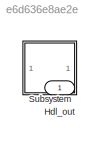
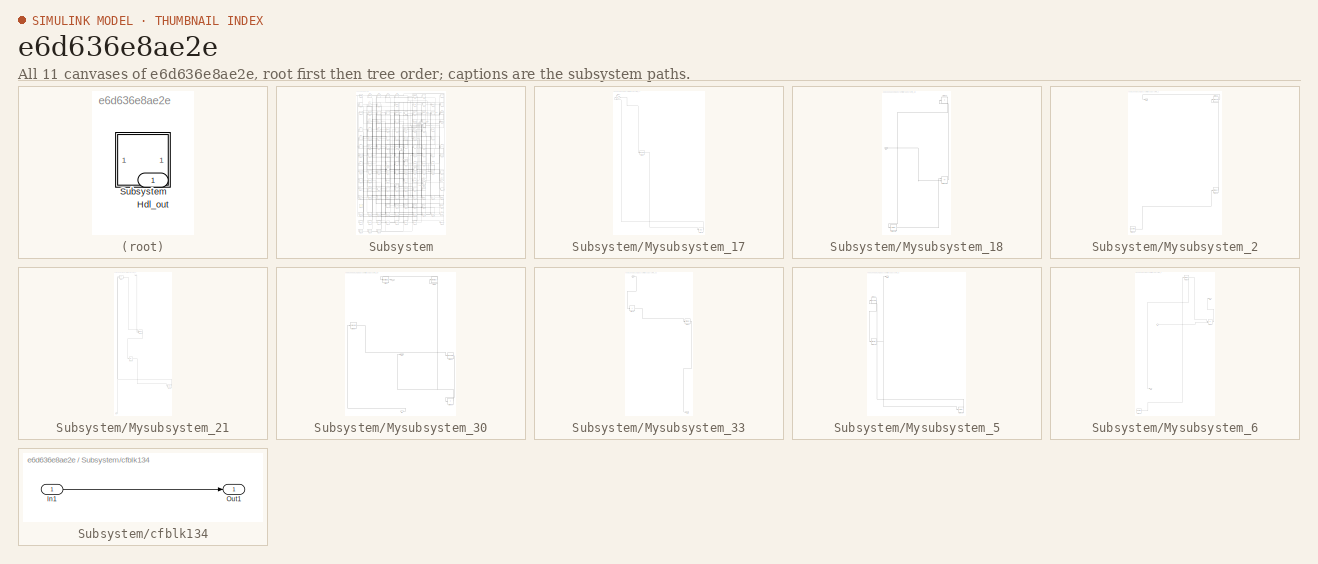
[diagram: thumbnail index - all 11 canvases of the model, root first then tree order]
MODEL slx_e6d636e8ae2e
KIND model
CONFIG AbsTol = auto
CONFIG EnableMultiTasking = off
CONFIG FixedStep = auto
CONFIG MaxStep = auto
CONFIG MinStep = auto
CONFIG RelTol = 1e-3
CONFIG SampleTimeConstraint = Unconstrained
CONFIG SolverName = VariableStepAuto
CONFIG StartTime = 0.0
CONFIG StopTime = 10.0
BLOCK [Outport] Hdl_out
  OutDataTypeStr = uint8
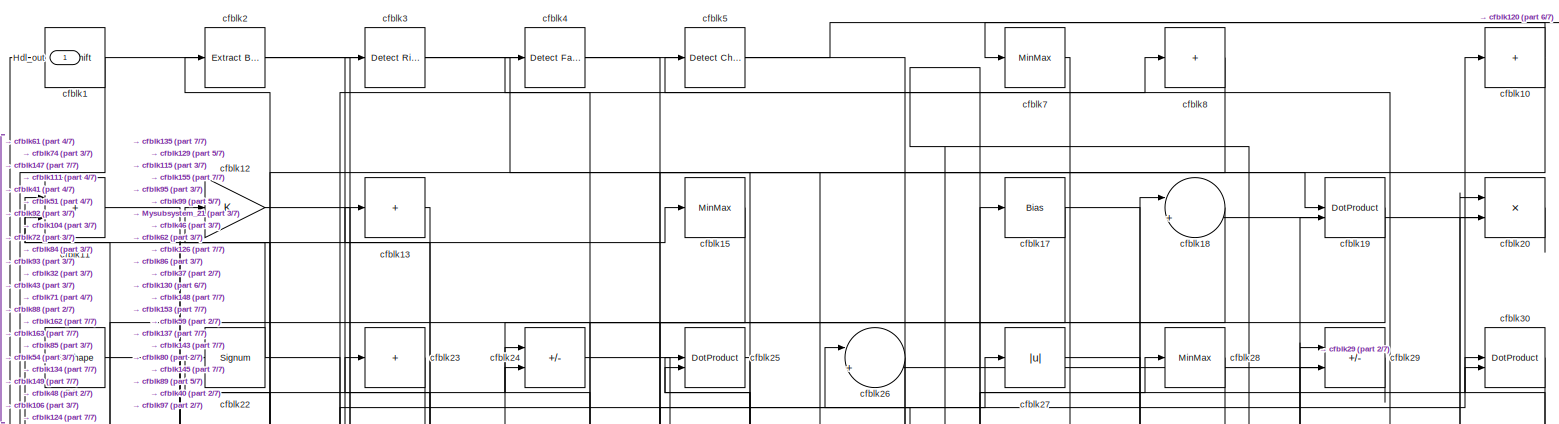
[diagram: Subsystem - part 1/7, full width, top band]
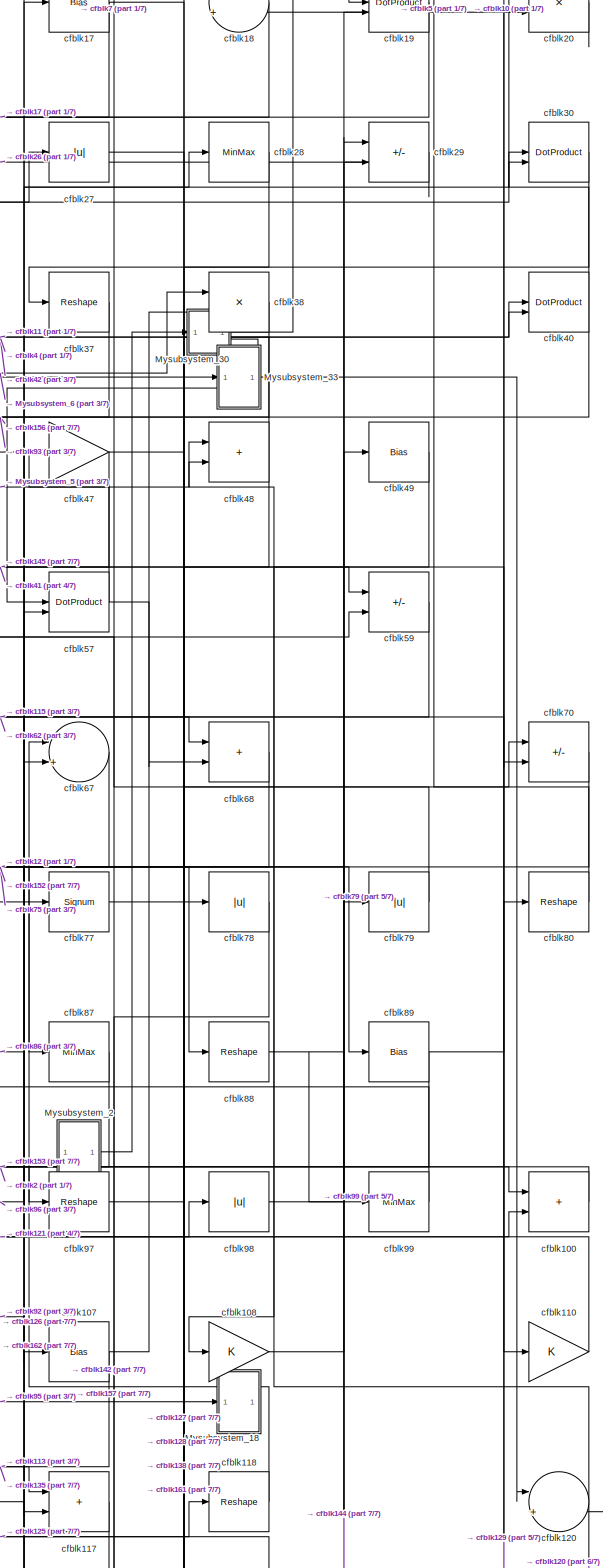
[diagram: Subsystem - part 2/7, middle right region]
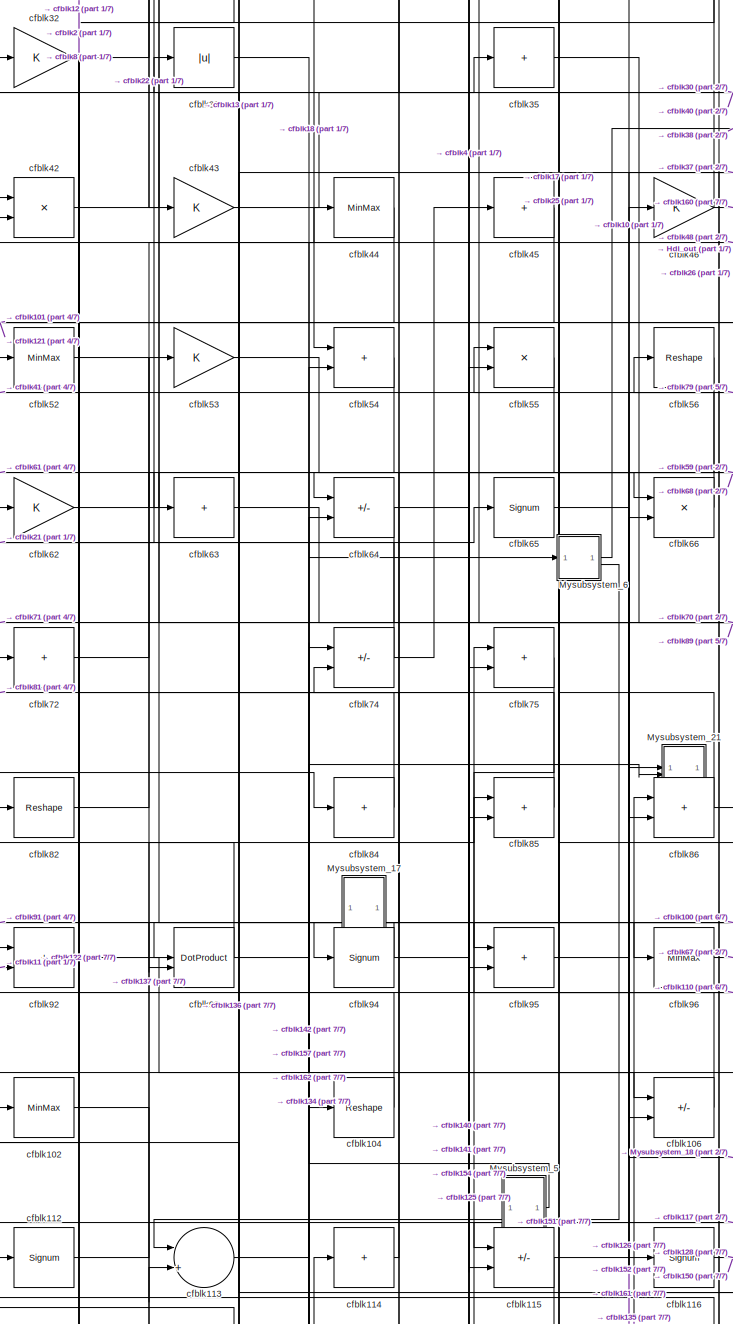
[diagram: Subsystem - part 3/7, central region]
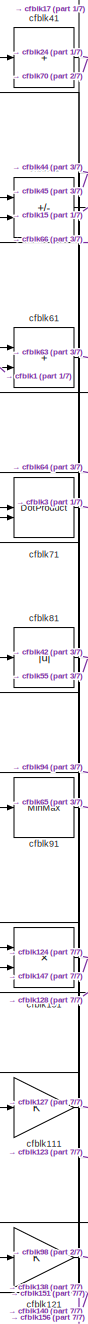
[diagram: Subsystem - part 4/7, middle left region]
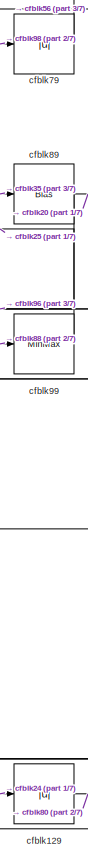
[diagram: Subsystem - part 5/7, middle right region]
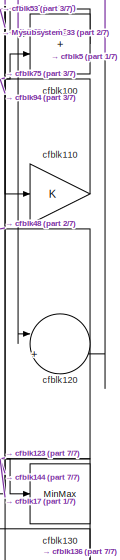
[diagram: Subsystem - part 6/7, middle right region]
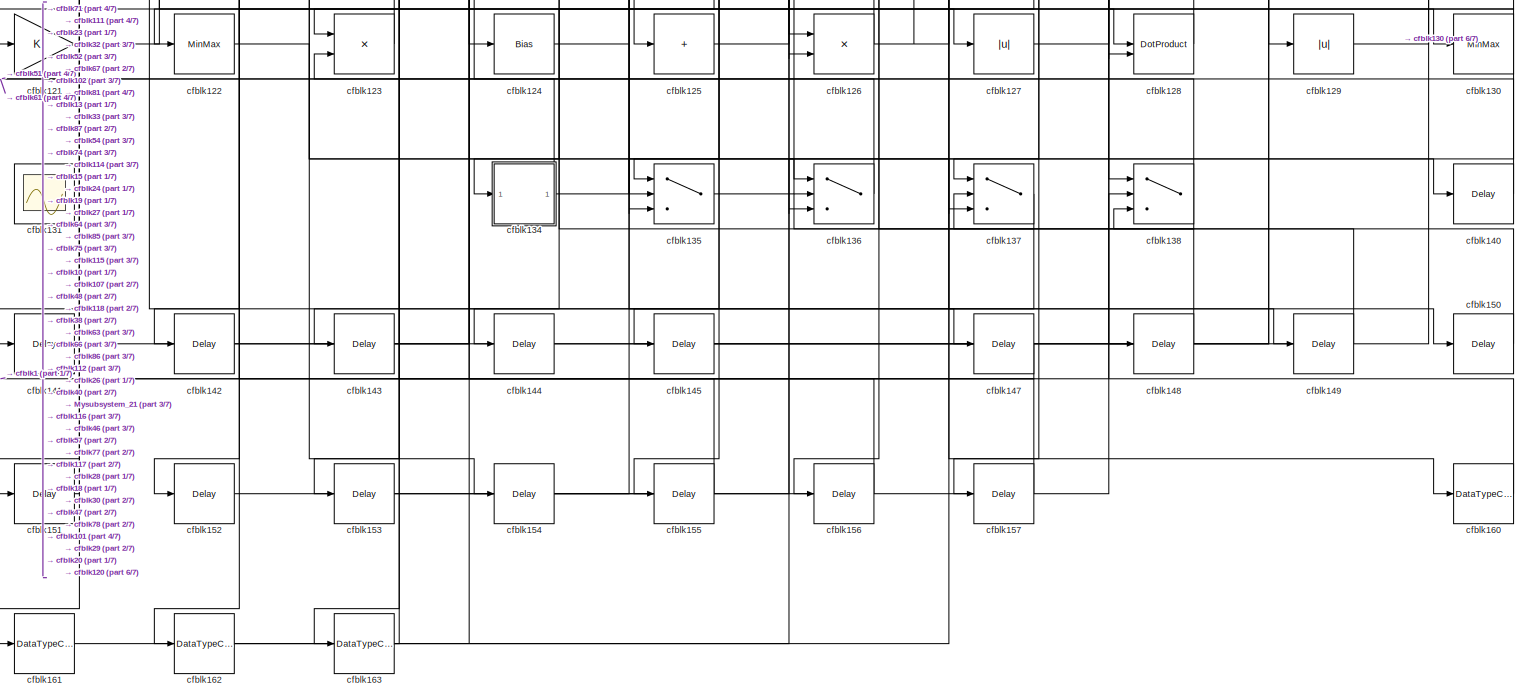
[diagram: Subsystem - part 7/7, full width, bottom band]
BLOCK [SubSystem] Subsystem
BLOCK [Outport] Subsystem/Hdl_out
  OutDataTypeStr = uint8
BLOCK [SubSystem] Subsystem/Mysubsystem_17
  RTWFcnName = Mysubsystem_17
  RTWFcnNameOpts = User specified
  RTWFileNameOpts = Use function name
  RTWSystemCode = Reusable function
  TreatAsAtomicUnit = on
BLOCK [Delay] Subsystem/Mysubsystem_17/cfblk158
  InputPortMap = u0
  SampleTime = 1
BLOCK [Gain] Subsystem/Mysubsystem_17/cfblk31
BLOCK [Reshape] Subsystem/Mysubsystem_17/cfblk83
BLOCK [SubSystem] Subsystem/Mysubsystem_18
  RTWFcnName = Mysubsystem_18
  RTWFcnNameOpts = User specified
  RTWFileNameOpts = Use function name
  RTWSystemCode = Reusable function
  TreatAsAtomicUnit = on
BLOCK [Inport] Subsystem/Mysubsystem_18/In1
BLOCK [Sum] Subsystem/Mysubsystem_18/cfblk119
  IconShape = rectangular
  Inputs = +-
BLOCK [Delay] Subsystem/Mysubsystem_18/cfblk146
  InputPortMap = u0
  SampleTime = 1
BLOCK [Sum] Subsystem/Mysubsystem_18/cfblk69
  IconShape = rectangular
  Inputs = +
BLOCK [SubSystem] Subsystem/Mysubsystem_2
  RTWFcnName = Mysubsystem_2
  RTWFcnNameOpts = User specified
  RTWFileNameOpts = Use function name
  RTWSystemCode = Reusable function
  TreatAsAtomicUnit = on
BLOCK [Outport] Subsystem/Mysubsystem_2/Out1
BLOCK [MinMax] Subsystem/Mysubsystem_2/cfblk109
BLOCK [Reference] Subsystem/Mysubsystem_2/cfblk133  REF=hdlsllib/Sources/Counter
Free-Running
  SourceBlock = hdlsllib/Sources/Counter\nFree-Running
  SourceType = Counter Free-Running
BLOCK [Signum] Subsystem/Mysubsystem_2/cfblk39
BLOCK [SubSystem] Subsystem/Mysubsystem_21
  RTWFcnName = Mysubsystem_21
  RTWFcnNameOpts = User specified
  RTWFileNameOpts = Use function name
  RTWSystemCode = Reusable function
  TreatAsAtomicUnit = on
BLOCK [Inport] Subsystem/Mysubsystem_21/In1
BLOCK [Inport] Subsystem/Mysubsystem_21/In2
  Port = 2
BLOCK [Abs] Subsystem/Mysubsystem_21/cfblk105
  SaturateOnIntegerOverflow = off
BLOCK [Delay] Subsystem/Mysubsystem_21/cfblk139
  InputPortMap = u0
  SampleTime = 1
BLOCK [Sum] Subsystem/Mysubsystem_21/cfblk14
  IconShape = rectangular
  Inputs = +-
BLOCK [DotProduct] Subsystem/Mysubsystem_21/cfblk76
  OutDataTypeStr = Inherit: Inherit via internal rule
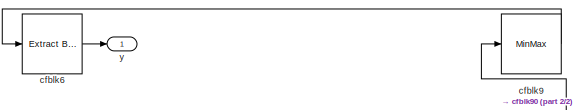
[diagram: Subsystem/Mysubsystem_30 - part 1/2, top center region]
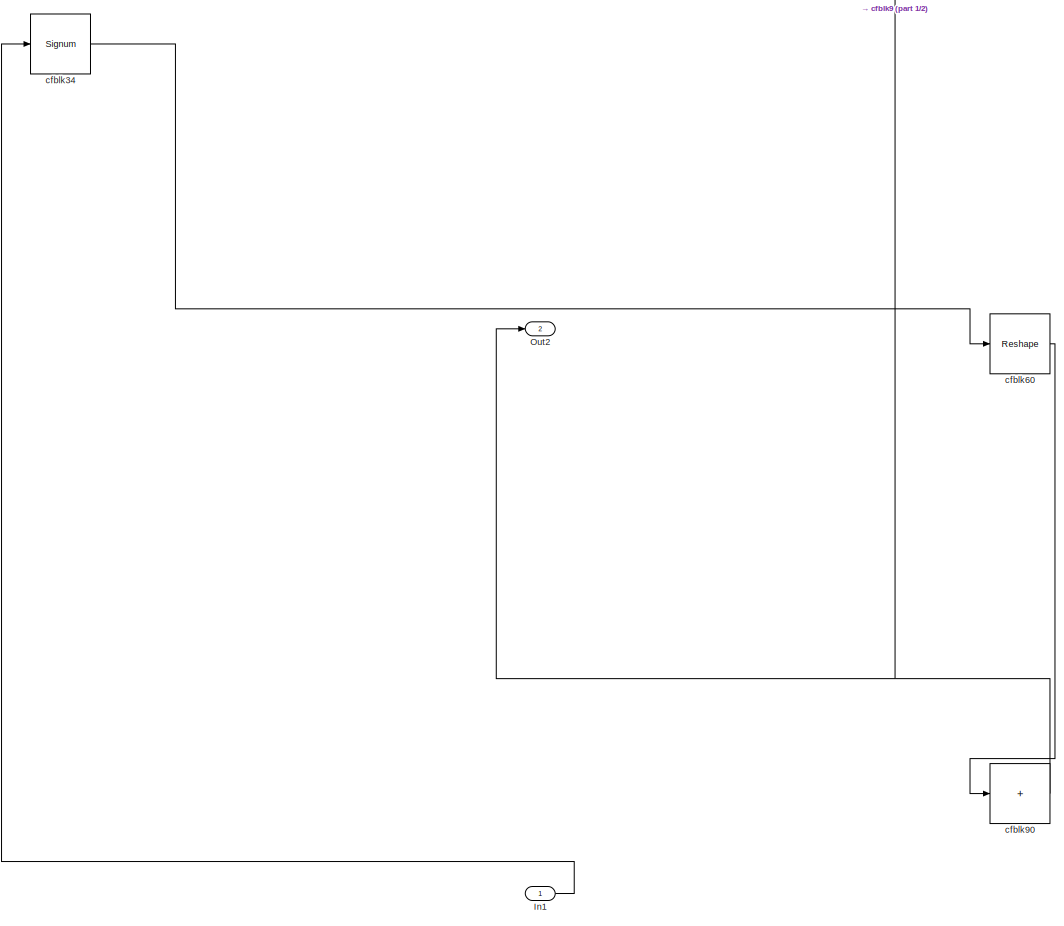
[diagram: Subsystem/Mysubsystem_30 - part 2/2, full width, middle band]
BLOCK [SubSystem] Subsystem/Mysubsystem_30
  RTWFcnName = Mysubsystem_30
  RTWFcnNameOpts = User specified
  RTWFileNameOpts = Use function name
  RTWSystemCode = Reusable function
  TreatAsAtomicUnit = on
BLOCK [Inport] Subsystem/Mysubsystem_30/In1
BLOCK [Outport] Subsystem/Mysubsystem_30/Out2
  Port = 2
BLOCK [Signum] Subsystem/Mysubsystem_30/cfblk34
BLOCK [Reference] Subsystem/Mysubsystem_30/cfblk6  REF=simulink/Logic and Bit
Operations/Extract Bits
  LibrarySourceBlock = hdlsllib/Logic and Bit\nOperations/Extract Bits
  SourceBlock = simulink/Logic and Bit\nOperations/Extract Bits
  SourceType = Extract Bits
BLOCK [Reshape] Subsystem/Mysubsystem_30/cfblk60
BLOCK [MinMax] Subsystem/Mysubsystem_30/cfblk9
BLOCK [Sum] Subsystem/Mysubsystem_30/cfblk90
  IconShape = rectangular
  Inputs = +
BLOCK [Outport] Subsystem/Mysubsystem_30/y
BLOCK [SubSystem] Subsystem/Mysubsystem_33
  RTWFcnName = Mysubsystem_33
  RTWFcnNameOpts = User specified
  RTWFileNameOpts = Use function name
  RTWSystemCode = Reusable function
  TreatAsAtomicUnit = on
BLOCK [Inport] Subsystem/Mysubsystem_33/In1
BLOCK [Outport] Subsystem/Mysubsystem_33/Out1
BLOCK [Sum] Subsystem/Mysubsystem_33/cfblk36
  IconShape = rectangular
  Inputs = +
BLOCK [MinMax] Subsystem/Mysubsystem_33/cfblk50
BLOCK [SubSystem] Subsystem/Mysubsystem_5
  RTWFcnName = Mysubsystem_5
  RTWFcnNameOpts = User specified
  RTWFileNameOpts = Use function name
  RTWSystemCode = Reusable function
  TreatAsAtomicUnit = on
BLOCK [Outport] Subsystem/Mysubsystem_5/Out1
BLOCK [MinMax] Subsystem/Mysubsystem_5/cfblk103
BLOCK [Delay] Subsystem/Mysubsystem_5/cfblk159
  InputPortMap = u0
  SampleTime = 1
BLOCK [Reshape] Subsystem/Mysubsystem_5/cfblk73
BLOCK [SubSystem] Subsystem/Mysubsystem_6
  RTWFcnName = Mysubsystem_6
  RTWFcnNameOpts = User specified
  RTWFileNameOpts = Use function name
  RTWSystemCode = Reusable function
  TreatAsAtomicUnit = on
BLOCK [Inport] Subsystem/Mysubsystem_6/In1
BLOCK [Outport] Subsystem/Mysubsystem_6/Out1
BLOCK [Outport] Subsystem/Mysubsystem_6/Out2
  Port = 2
BLOCK [Reference] Subsystem/Mysubsystem_6/cfblk132  REF=hdlsllib/Sources/Counter
Limited
  SourceBlock = hdlsllib/Sources/Counter\nLimited
  SourceType = Counter Limited
BLOCK [MinMax] Subsystem/Mysubsystem_6/cfblk16
BLOCK [Product] Subsystem/Mysubsystem_6/cfblk58
  Inputs = */
  RndMeth = Zero
  SaturateOnIntegerOverflow = on
BLOCK [Reference] Subsystem/cfblk1  REF=hdlsllib/Logic and Bit
Operations/Bit Shift
  SourceBlock = hdlsllib/Logic and Bit\nOperations/Bit Shift
  SourceType = Bit Shift
BLOCK [Sum] Subsystem/cfblk10
  IconShape = rectangular
  Inputs = +
  OutDataTypeStr = uint8
BLOCK [Sum] Subsystem/cfblk100
  IconShape = rectangular
  OutDataTypeStr = uint8
BLOCK [Product] Subsystem/cfblk101
  Inputs = */
  OutDataTypeStr = uint8
  RndMeth = Zero
  SaturateOnIntegerOverflow = on
BLOCK [MinMax] Subsystem/cfblk102
  OutDataTypeStr = uint8
BLOCK [Reshape] Subsystem/cfblk104
BLOCK [Sum] Subsystem/cfblk106
  IconShape = rectangular
  Inputs = +-
  OutDataTypeStr = uint8
BLOCK [Bias] Subsystem/cfblk107
  Bias = 0.0
  SaturateOnIntegerOverflow = off
BLOCK [Gain] Subsystem/cfblk108
  OutDataTypeStr = uint8
BLOCK [Sum] Subsystem/cfblk11
  IconShape = rectangular
  OutDataTypeStr = uint8
BLOCK [Gain] Subsystem/cfblk110
  OutDataTypeStr = uint8
BLOCK [Gain] Subsystem/cfblk111
  OutDataTypeStr = uint8
BLOCK [Signum] Subsystem/cfblk112
BLOCK [Sum] Subsystem/cfblk113
  Inputs = |++
  OutDataTypeStr = uint8
BLOCK [Sum] Subsystem/cfblk114
  IconShape = rectangular
  Inputs = +
  OutDataTypeStr = uint8
BLOCK [Sum] Subsystem/cfblk115
  IconShape = rectangular
  Inputs = +-
  OutDataTypeStr = uint8
BLOCK [Signum] Subsystem/cfblk116
BLOCK [Sum] Subsystem/cfblk117
  IconShape = rectangular
  OutDataTypeStr = uint8
BLOCK [Reshape] Subsystem/cfblk118
BLOCK [Gain] Subsystem/cfblk12
  OutDataTypeStr = uint8
BLOCK [Sum] Subsystem/cfblk120
  Inputs = |++
  OutDataTypeStr = uint8
BLOCK [Gain] Subsystem/cfblk121
  OutDataTypeStr = uint8
BLOCK [MinMax] Subsystem/cfblk122
  OutDataTypeStr = uint8
BLOCK [Product] Subsystem/cfblk123
  Inputs = */
  OutDataTypeStr = uint8
  RndMeth = Zero
  SaturateOnIntegerOverflow = on
BLOCK [Bias] Subsystem/cfblk124
  Bias = 0.0
  SaturateOnIntegerOverflow = off
BLOCK [Sum] Subsystem/cfblk125
  IconShape = rectangular
  Inputs = +
  OutDataTypeStr = uint8
BLOCK [Product] Subsystem/cfblk126
  Inputs = */
  OutDataTypeStr = uint8
  RndMeth = Zero
  SaturateOnIntegerOverflow = on
BLOCK [Abs] Subsystem/cfblk127
  OutDataTypeStr = uint8
  SaturateOnIntegerOverflow = off
BLOCK [DotProduct] Subsystem/cfblk128
  OutDataTypeStr = uint8
BLOCK [Abs] Subsystem/cfblk129
  OutDataTypeStr = uint8
  SaturateOnIntegerOverflow = off
BLOCK [Sum] Subsystem/cfblk13
  IconShape = rectangular
  Inputs = +
  OutDataTypeStr = uint8
BLOCK [MinMax] Subsystem/cfblk130
  OutDataTypeStr = uint8
BLOCK [Scope] Subsystem/cfblk131
  Floating = on
  NumInputPorts = 1
  ScopeSpecificationString = Simulink.scopes.TimeScopeBlockCfg('CurrentConfiguration', extmgr.ConfigurationSet(extmgr.Configuration('Core','General UI',true,'FigureColor',[0.156862745098039 0.156862745098039 0.156862745098039]),extmgr.Configuration('Core','Source UI',true),extmgr.Configuration('Sources','WiredSimulink',true,'DataLoggingSaveFormat','StructureWithTime','DataLoggingLimitDataPoints',true,'DataLoggingDecimation','...<+2674ch>
BLOCK [SubSystem] Subsystem/cfblk134
  LibrarySourceBlock = hdlsllib/Ports &\nSubsystems/Subsystem
BLOCK [Inport] Subsystem/cfblk134/In1
BLOCK [Outport] Subsystem/cfblk134/Out1
BLOCK [Switch] Subsystem/cfblk135
  InputSameDT = off
  OutDataTypeStr = uint8
  SaturateOnIntegerOverflow = off
BLOCK [Switch] Subsystem/cfblk136
  InputSameDT = off
  OutDataTypeStr = uint8
  SaturateOnIntegerOverflow = off
BLOCK [Switch] Subsystem/cfblk137
  InputSameDT = off
  OutDataTypeStr = uint8
  SaturateOnIntegerOverflow = off
BLOCK [Switch] Subsystem/cfblk138
  InputSameDT = off
  OutDataTypeStr = uint8
  SaturateOnIntegerOverflow = off
BLOCK [Delay] Subsystem/cfblk140
  InputPortMap = u0
  SampleTime = 1
BLOCK [Delay] Subsystem/cfblk141
  InputPortMap = u0
  SampleTime = 1
BLOCK [Delay] Subsystem/cfblk142
  InputPortMap = u0
  SampleTime = 1
BLOCK [Delay] Subsystem/cfblk143
  InputPortMap = u0
  SampleTime = 1
BLOCK [Delay] Subsystem/cfblk144
  InputPortMap = u0
  SampleTime = 1
BLOCK [Delay] Subsystem/cfblk145
  InputPortMap = u0
  SampleTime = 1
BLOCK [Delay] Subsystem/cfblk147
  InputPortMap = u0
  SampleTime = 1
BLOCK [Delay] Subsystem/cfblk148
  InputPortMap = u0
  SampleTime = 1
BLOCK [Delay] Subsystem/cfblk149
  InputPortMap = u0
  SampleTime = 1
BLOCK [MinMax] Subsystem/cfblk15
  OutDataTypeStr = uint8
BLOCK [Delay] Subsystem/cfblk150
  InputPortMap = u0
  SampleTime = 1
BLOCK [Delay] Subsystem/cfblk151
  InputPortMap = u0
  SampleTime = 1
BLOCK [Delay] Subsystem/cfblk152
  InputPortMap = u0
  SampleTime = 1
BLOCK [Delay] Subsystem/cfblk153
  InputPortMap = u0
  SampleTime = 1
BLOCK [Delay] Subsystem/cfblk154
  InputPortMap = u0
  SampleTime = 1
BLOCK [Delay] Subsystem/cfblk155
  InputPortMap = u0
  SampleTime = 1
BLOCK [Delay] Subsystem/cfblk156
  InputPortMap = u0
  SampleTime = 1
BLOCK [Delay] Subsystem/cfblk157
  InputPortMap = u0
  SampleTime = 1
BLOCK [DataTypeConversion] Subsystem/cfblk160
  OutDataTypeStr = uint8
  RndMeth = Floor
  SaturateOnIntegerOverflow = off
BLOCK [DataTypeConversion] Subsystem/cfblk161
  OutDataTypeStr = uint8
  RndMeth = Floor
  SaturateOnIntegerOverflow = off
BLOCK [DataTypeConversion] Subsystem/cfblk162
  OutDataTypeStr = uint8
  RndMeth = Floor
  SaturateOnIntegerOverflow = off
BLOCK [DataTypeConversion] Subsystem/cfblk163
  OutDataTypeStr = uint8
  RndMeth = Floor
  SaturateOnIntegerOverflow = off
BLOCK [Bias] Subsystem/cfblk17
  Bias = 0.0
  SaturateOnIntegerOverflow = off
BLOCK [Sum] Subsystem/cfblk18
  Inputs = |++
  OutDataTypeStr = uint8
BLOCK [DotProduct] Subsystem/cfblk19
  OutDataTypeStr = uint8
BLOCK [Reference] Subsystem/cfblk2  REF=simulink/Logic and Bit
Operations/Extract Bits
  LibrarySourceBlock = hdlsllib/Logic and Bit\nOperations/Extract Bits
  SourceBlock = simulink/Logic and Bit\nOperations/Extract Bits
  SourceType = Extract Bits
BLOCK [Product] Subsystem/cfblk20
  Inputs = */
  OutDataTypeStr = uint8
  RndMeth = Zero
  SaturateOnIntegerOverflow = on
BLOCK [Reshape] Subsystem/cfblk21
BLOCK [Signum] Subsystem/cfblk22
BLOCK [Sum] Subsystem/cfblk23
  IconShape = rectangular
  Inputs = +
  OutDataTypeStr = uint8
BLOCK [Sum] Subsystem/cfblk24
  IconShape = rectangular
  Inputs = +-
  OutDataTypeStr = uint8
BLOCK [DotProduct] Subsystem/cfblk25
  OutDataTypeStr = uint8
BLOCK [Sum] Subsystem/cfblk26
  Inputs = |++
  OutDataTypeStr = uint8
BLOCK [Abs] Subsystem/cfblk27
  OutDataTypeStr = uint8
  SaturateOnIntegerOverflow = off
BLOCK [MinMax] Subsystem/cfblk28
  OutDataTypeStr = uint8
BLOCK [Sum] Subsystem/cfblk29
  IconShape = rectangular
  Inputs = +-
  OutDataTypeStr = uint8
BLOCK [Reference] Subsystem/cfblk3  REF=hdlsllib/Logic and Bit
Operations/Detect Rise
Positive
  SourceBlock = hdlsllib/Logic and Bit\nOperations/Detect Rise\nPositive
  SourceType = Detect Rise Positive
BLOCK [DotProduct] Subsystem/cfblk30
  OutDataTypeStr = uint8
BLOCK [Gain] Subsystem/cfblk32
  OutDataTypeStr = uint8
BLOCK [Abs] Subsystem/cfblk33
  OutDataTypeStr = uint8
  SaturateOnIntegerOverflow = off
BLOCK [Sum] Subsystem/cfblk35
  IconShape = rectangular
  Inputs = +
  OutDataTypeStr = uint8
BLOCK [Reshape] Subsystem/cfblk37
BLOCK [Product] Subsystem/cfblk38
  Inputs = */
  OutDataTypeStr = uint8
  RndMeth = Zero
  SaturateOnIntegerOverflow = on
BLOCK [Reference] Subsystem/cfblk4  REF=hdlsllib/Logic and Bit
Operations/Detect Fall
Nonpositive
  SourceBlock = hdlsllib/Logic and Bit\nOperations/Detect Fall\nNonpositive
  SourceType = Detect Fall Nonpositive
BLOCK [DotProduct] Subsystem/cfblk40
  OutDataTypeStr = uint8
BLOCK [Sum] Subsystem/cfblk41
  IconShape = rectangular
  Inputs = +
  OutDataTypeStr = uint8
BLOCK [Product] Subsystem/cfblk42
  Inputs = */
  OutDataTypeStr = uint8
  RndMeth = Zero
  SaturateOnIntegerOverflow = on
BLOCK [Gain] Subsystem/cfblk43
  OutDataTypeStr = uint8
BLOCK [MinMax] Subsystem/cfblk44
  OutDataTypeStr = uint8
BLOCK [Sum] Subsystem/cfblk45
  IconShape = rectangular
  Inputs = +
  OutDataTypeStr = uint8
BLOCK [Gain] Subsystem/cfblk46
  OutDataTypeStr = uint8
BLOCK [Gain] Subsystem/cfblk47
  OutDataTypeStr = uint8
BLOCK [Sum] Subsystem/cfblk48
  IconShape = rectangular
  OutDataTypeStr = uint8
BLOCK [Bias] Subsystem/cfblk49
  Bias = 0.0
  SaturateOnIntegerOverflow = off
BLOCK [Reference] Subsystem/cfblk5  REF=simulink/Logic and Bit
Operations/Detect
Change
  LibrarySourceBlock = hdlsllib/Logic and Bit\nOperations/Detect\nChange
  SourceBlock = simulink/Logic and Bit\nOperations/Detect\nChange
  SourceType = Detect Change
BLOCK [Sum] Subsystem/cfblk51
  IconShape = rectangular
  Inputs = +-
  OutDataTypeStr = uint8
BLOCK [MinMax] Subsystem/cfblk52
  OutDataTypeStr = uint8
BLOCK [Gain] Subsystem/cfblk53
  OutDataTypeStr = uint8
BLOCK [Sum] Subsystem/cfblk54
  IconShape = rectangular
  OutDataTypeStr = uint8
BLOCK [Product] Subsystem/cfblk55
  Inputs = */
  OutDataTypeStr = uint8
  RndMeth = Zero
  SaturateOnIntegerOverflow = on
BLOCK [Reshape] Subsystem/cfblk56
BLOCK [DotProduct] Subsystem/cfblk57
  OutDataTypeStr = uint8
BLOCK [Sum] Subsystem/cfblk59
  IconShape = rectangular
  Inputs = +-
  OutDataTypeStr = uint8
BLOCK [Sum] Subsystem/cfblk61
  IconShape = rectangular
  OutDataTypeStr = uint8
BLOCK [Gain] Subsystem/cfblk62
  OutDataTypeStr = uint8
BLOCK [Sum] Subsystem/cfblk63
  IconShape = rectangular
  Inputs = +
  OutDataTypeStr = uint8
BLOCK [Sum] Subsystem/cfblk64
  IconShape = rectangular
  Inputs = +-
  OutDataTypeStr = uint8
BLOCK [Signum] Subsystem/cfblk65
BLOCK [Product] Subsystem/cfblk66
  Inputs = */
  OutDataTypeStr = uint8
  RndMeth = Zero
  SaturateOnIntegerOverflow = on
BLOCK [Sum] Subsystem/cfblk67
  Inputs = |++
  OutDataTypeStr = uint8
BLOCK [Sum] Subsystem/cfblk68
  IconShape = rectangular
  OutDataTypeStr = uint8
BLOCK [MinMax] Subsystem/cfblk7
  OutDataTypeStr = uint8
BLOCK [Sum] Subsystem/cfblk70
  IconShape = rectangular
  Inputs = +-
  OutDataTypeStr = uint8
BLOCK [DotProduct] Subsystem/cfblk71
  OutDataTypeStr = uint8
BLOCK [Sum] Subsystem/cfblk72
  IconShape = rectangular
  Inputs = +
  OutDataTypeStr = uint8
BLOCK [Sum] Subsystem/cfblk74
  IconShape = rectangular
  Inputs = +-
  OutDataTypeStr = uint8
BLOCK [Sum] Subsystem/cfblk75
  IconShape = rectangular
  OutDataTypeStr = uint8
BLOCK [Signum] Subsystem/cfblk77
BLOCK [Abs] Subsystem/cfblk78
  OutDataTypeStr = uint8
  SaturateOnIntegerOverflow = off
BLOCK [Abs] Subsystem/cfblk79
  OutDataTypeStr = uint8
  SaturateOnIntegerOverflow = off
BLOCK [Sum] Subsystem/cfblk8
  IconShape = rectangular
  Inputs = +
  OutDataTypeStr = uint8
BLOCK [Reshape] Subsystem/cfblk80
BLOCK [Abs] Subsystem/cfblk81
  OutDataTypeStr = uint8
  SaturateOnIntegerOverflow = off
BLOCK [Reshape] Subsystem/cfblk82
BLOCK [Sum] Subsystem/cfblk84
  IconShape = rectangular
  Inputs = +
  OutDataTypeStr = uint8
BLOCK [Sum] Subsystem/cfblk85
  IconShape = rectangular
  OutDataTypeStr = uint8
BLOCK [Sum] Subsystem/cfblk86
  IconShape = rectangular
  OutDataTypeStr = uint8
BLOCK [MinMax] Subsystem/cfblk87
  OutDataTypeStr = uint8
BLOCK [Reshape] Subsystem/cfblk88
BLOCK [Bias] Subsystem/cfblk89
  Bias = 0.0
  SaturateOnIntegerOverflow = off
BLOCK [MinMax] Subsystem/cfblk91
  OutDataTypeStr = uint8
BLOCK [Sum] Subsystem/cfblk92
  IconShape = rectangular
  OutDataTypeStr = uint8
BLOCK [DotProduct] Subsystem/cfblk93
  OutDataTypeStr = uint8
BLOCK [Signum] Subsystem/cfblk94
BLOCK [Sum] Subsystem/cfblk95
  IconShape = rectangular
  OutDataTypeStr = uint8
BLOCK [MinMax] Subsystem/cfblk96
  OutDataTypeStr = uint8
BLOCK [Reshape] Subsystem/cfblk97
BLOCK [Abs] Subsystem/cfblk98
  OutDataTypeStr = uint8
  SaturateOnIntegerOverflow = off
BLOCK [MinMax] Subsystem/cfblk99
  OutDataTypeStr = uint8
LINE Subsystem/Mysubsystem_17/cfblk158:1 -> Subsystem/Mysubsystem_17/cfblk31:1
LINE Subsystem/Mysubsystem_17/cfblk31:1 -> Subsystem/Mysubsystem_17/cfblk83:1
LINE Subsystem/Mysubsystem_17/cfblk83:1 -> Subsystem/Mysubsystem_17/cfblk158:1
LINE Subsystem/Mysubsystem_18/In1:1 -> Subsystem/Mysubsystem_18/cfblk119:2
LINE Subsystem/Mysubsystem_18/cfblk119:1 -> Subsystem/Mysubsystem_18/cfblk69:1
LINE Subsystem/Mysubsystem_18/cfblk146:1 -> Subsystem/Mysubsystem_18/cfblk119:1
LINE Subsystem/Mysubsystem_18/cfblk69:1 -> Subsystem/Mysubsystem_18/cfblk146:1
LINE Subsystem/Mysubsystem_2/cfblk109:1 -> Subsystem/Mysubsystem_2/cfblk39:1
LINE Subsystem/Mysubsystem_2/cfblk133:1 -> Subsystem/Mysubsystem_2/cfblk109:1
LINE Subsystem/Mysubsystem_2/cfblk39:1 -> Subsystem/Mysubsystem_2/Out1:1
LINE Subsystem/Mysubsystem_21/In1:1 -> Subsystem/Mysubsystem_21/cfblk76:2
LINE Subsystem/Mysubsystem_21/In2:1 -> Subsystem/Mysubsystem_21/cfblk14:2
LINE Subsystem/Mysubsystem_21/cfblk105:1 -> Subsystem/Mysubsystem_21/cfblk139:1
LINE Subsystem/Mysubsystem_21/cfblk139:1 -> Subsystem/Mysubsystem_21/cfblk14:1
LINE Subsystem/Mysubsystem_21/cfblk14:1 -> Subsystem/Mysubsystem_21/cfblk76:1
LINE Subsystem/Mysubsystem_21/cfblk76:1 -> Subsystem/Mysubsystem_21/cfblk105:1
LINE Subsystem/Mysubsystem_2:1 -> Subsystem/Mysubsystem_30:1
LINE Subsystem/Mysubsystem_30/In1:1 -> Subsystem/Mysubsystem_30/cfblk34:1
LINE Subsystem/Mysubsystem_30/cfblk34:1 -> Subsystem/Mysubsystem_30/cfblk60:1
LINE Subsystem/Mysubsystem_30/cfblk60:1 -> Subsystem/Mysubsystem_30/cfblk90:1
LINE Subsystem/Mysubsystem_30/cfblk6:1 -> Subsystem/Mysubsystem_30/y:1
NET Subsystem/Mysubsystem_30/cfblk90:1 -> Subsystem/Mysubsystem_30/Out2:1, Subsystem/Mysubsystem_30/cfblk9:1
LINE Subsystem/Mysubsystem_30/cfblk9:1 -> Subsystem/Mysubsystem_30/cfblk6:1
NET Subsystem/Mysubsystem_30:1 -> Subsystem/Mysubsystem_33:1, Subsystem/cfblk107:1
LINE Subsystem/Mysubsystem_30:2 -> Subsystem/cfblk57:1
LINE Subsystem/Mysubsystem_33/In1:1 -> Subsystem/Mysubsystem_33/cfblk36:1
LINE Subsystem/Mysubsystem_33/cfblk36:1 -> Subsystem/Mysubsystem_33/cfblk50:1
LINE Subsystem/Mysubsystem_33/cfblk50:1 -> Subsystem/Mysubsystem_33/Out1:1
LINE Subsystem/Mysubsystem_33:1 -> Subsystem/cfblk120:1
NET Subsystem/Mysubsystem_5/cfblk103:1 -> Subsystem/Mysubsystem_5/Out1:1, Subsystem/Mysubsystem_5/cfblk159:1
LINE Subsystem/Mysubsystem_5/cfblk159:1 -> Subsystem/Mysubsystem_5/cfblk73:1
LINE Subsystem/Mysubsystem_5/cfblk73:1 -> Subsystem/Mysubsystem_5/cfblk103:1
NET Subsystem/Mysubsystem_5:1 -> Subsystem/Mysubsystem_6:1, Subsystem/cfblk48:1
LINE Subsystem/Mysubsystem_6/In1:1 -> Subsystem/Mysubsystem_6/cfblk58:2
LINE Subsystem/Mysubsystem_6/cfblk132:1 -> Subsystem/Mysubsystem_6/cfblk16:1
NET Subsystem/Mysubsystem_6/cfblk16:1 -> Subsystem/Mysubsystem_6/Out2:1, Subsystem/Mysubsystem_6/cfblk58:1
LINE Subsystem/Mysubsystem_6/cfblk58:1 -> Subsystem/Mysubsystem_6/Out1:1
LINE Subsystem/Mysubsystem_6:1 -> Subsystem/cfblk38:1
LINE Subsystem/Mysubsystem_6:2 -> Subsystem/cfblk113:1
LINE Subsystem/cfblk100:1 -> Subsystem/cfblk92:1
NET Subsystem/cfblk101:1 -> Subsystem/cfblk124:1, Subsystem/cfblk147:1
NET Subsystem/cfblk102:1 -> Subsystem/cfblk135:2, Subsystem/cfblk82:1
LINE Subsystem/cfblk104:1 -> Subsystem/cfblk12:1
LINE Subsystem/cfblk106:1 -> Subsystem/cfblk55:1
NET Subsystem/cfblk107:1 -> Subsystem/cfblk135:1, Subsystem/cfblk38:2
LINE Subsystem/cfblk108:1 -> Subsystem/cfblk29:2
NET Subsystem/cfblk10:1 -> Subsystem/Mysubsystem_21:1, Subsystem/cfblk115:2, Subsystem/cfblk155:1, Subsystem/cfblk7:1
LINE Subsystem/cfblk110:1 -> Subsystem/cfblk75:1
LINE Subsystem/cfblk111:1 -> Subsystem/cfblk127:1
LINE Subsystem/cfblk112:1 -> Subsystem/cfblk85:1
LINE Subsystem/cfblk113:1 -> Subsystem/cfblk117:1
LINE Subsystem/cfblk114:1 -> Subsystem/cfblk74:2
NET Subsystem/cfblk115:1 -> Subsystem/cfblk116:1, Subsystem/cfblk151:1
NET Subsystem/cfblk116:1 -> Subsystem/cfblk128:1, Subsystem/cfblk150:1
LINE Subsystem/cfblk117:1 -> Subsystem/cfblk142:1
LINE Subsystem/cfblk118:1 -> Subsystem/cfblk67:1
LINE Subsystem/cfblk11:1 -> Subsystem/cfblk92:2
NET Subsystem/cfblk120:1 -> Subsystem/cfblk144:1, Subsystem/cfblk48:2
LINE Subsystem/cfblk121:1 -> Subsystem/cfblk98:1
NET Subsystem/cfblk122:1 -> Subsystem/cfblk154:1, Subsystem/cfblk52:1
NET Subsystem/cfblk123:1 -> Subsystem/cfblk122:1, Subsystem/cfblk81:1
NET Subsystem/cfblk124:1 -> Subsystem/cfblk149:1, Subsystem/cfblk27:1
LINE Subsystem/cfblk125:1 -> Subsystem/cfblk118:1
NET Subsystem/cfblk126:1 -> Subsystem/cfblk112:1, Subsystem/cfblk28:1, Subsystem/cfblk77:1
LINE Subsystem/cfblk127:1 -> Subsystem/cfblk78:1
LINE Subsystem/cfblk128:1 -> Subsystem/cfblk101:2
LINE Subsystem/cfblk129:1 -> Subsystem/cfblk80:1
LINE Subsystem/cfblk12:1 -> Subsystem/cfblk88:1
NET Subsystem/cfblk130:1 -> Subsystem/cfblk123:1, Subsystem/cfblk136:3
LINE Subsystem/cfblk134/In1:1 -> Subsystem/cfblk134/Out1:1
NET Subsystem/cfblk134:1 -> Subsystem/cfblk114:1, Subsystem/cfblk136:1
LINE Subsystem/cfblk135:1 -> Subsystem/cfblk86:1
LINE Subsystem/cfblk136:1 -> Subsystem/cfblk33:1
NET Subsystem/cfblk137:1 -> Subsystem/cfblk136:2, Subsystem/cfblk143:1
NET Subsystem/cfblk138:1 -> Subsystem/cfblk137:2, Subsystem/cfblk51:1
LINE Subsystem/cfblk13:1 -> Subsystem/cfblk163:1
LINE Subsystem/cfblk140:1 -> Subsystem/cfblk61:1
LINE Subsystem/cfblk141:1 -> Subsystem/cfblk54:2
LINE Subsystem/cfblk142:1 -> Subsystem/cfblk64:2
LINE Subsystem/cfblk143:1 -> Subsystem/cfblk19:2
LINE Subsystem/cfblk144:1 -> Subsystem/cfblk29:1
LINE Subsystem/cfblk145:1 -> Subsystem/cfblk20:2
LINE Subsystem/cfblk147:1 -> Subsystem/cfblk1:1
LINE Subsystem/cfblk148:1 -> Subsystem/cfblk26:1
LINE Subsystem/cfblk149:1 -> Subsystem/cfblk24:2
LINE Subsystem/cfblk150:1 -> Subsystem/cfblk138:3
LINE Subsystem/cfblk151:1 -> Subsystem/cfblk51:2
LINE Subsystem/cfblk152:1 -> Subsystem/cfblk66:2
LINE Subsystem/cfblk153:1 -> Subsystem/cfblk18:1
LINE Subsystem/cfblk154:1 -> Subsystem/cfblk85:2
LINE Subsystem/cfblk155:1 -> Subsystem/cfblk123:2
LINE Subsystem/cfblk156:1 -> Subsystem/cfblk71:2
LINE Subsystem/cfblk157:1 -> Subsystem/cfblk74:1
LINE Subsystem/cfblk15:1 -> Subsystem/cfblk134:1
NET Subsystem/cfblk160:1 -> Subsystem/cfblk102:1, Subsystem/cfblk138:2, Subsystem/cfblk32:1
LINE Subsystem/cfblk161:1 -> Subsystem/cfblk46:1
NET Subsystem/cfblk162:1 -> Subsystem/Mysubsystem_21:2, Subsystem/cfblk57:2
LINE Subsystem/cfblk163:1 -> Subsystem/cfblk23:1
NET Subsystem/cfblk17:1 -> Subsystem/cfblk111:1, Subsystem/cfblk130:1, Subsystem/cfblk59:1
LINE Subsystem/cfblk18:1 -> Subsystem/cfblk54:1
LINE Subsystem/cfblk19:1 -> Subsystem/cfblk135:3
LINE Subsystem/cfblk1:1 -> Subsystem/cfblk61:2
LINE Subsystem/cfblk20:1 -> Subsystem/cfblk18:2
NET Subsystem/cfblk21:1 -> Subsystem/cfblk106:2, Subsystem/cfblk84:1, Subsystem/cfblk93:2
NET Subsystem/cfblk22:1 -> Subsystem/cfblk11:2, Subsystem/cfblk43:1
LINE Subsystem/cfblk23:1 -> Subsystem/cfblk162:1
LINE Subsystem/cfblk24:1 -> Subsystem/cfblk129:1
LINE Subsystem/cfblk25:1 -> Subsystem/cfblk95:1
LINE Subsystem/cfblk26:1 -> Subsystem/cfblk62:1
LINE Subsystem/cfblk27:1 -> Subsystem/cfblk148:1
LINE Subsystem/cfblk28:1 -> Subsystem/cfblk137:1
LINE Subsystem/cfblk29:1 -> Subsystem/cfblk26:2
LINE Subsystem/cfblk2:1 -> Subsystem/cfblk97:1
LINE Subsystem/cfblk30:1 -> Subsystem/cfblk128:2
LINE Subsystem/cfblk32:1 -> Subsystem/cfblk8:1
LINE Subsystem/cfblk33:1 -> Subsystem/cfblk104:1
LINE Subsystem/cfblk35:1 -> Subsystem/cfblk89:1
LINE Subsystem/cfblk37:1 -> Subsystem/cfblk93:1
LINE Subsystem/cfblk38:1 -> Subsystem/cfblk126:2
LINE Subsystem/cfblk3:1 -> Subsystem/cfblk19:1
NET Subsystem/cfblk40:1 -> Subsystem/cfblk10:1, Subsystem/cfblk156:1
NET Subsystem/cfblk41:1 -> Subsystem/cfblk24:1, Subsystem/cfblk70:2
NET Subsystem/cfblk42:1 -> Subsystem/cfblk30:1, Subsystem/cfblk40:1
LINE Subsystem/cfblk43:1 -> Subsystem/cfblk35:1
NET Subsystem/cfblk44:1 -> Subsystem/cfblk121:1, Subsystem/cfblk42:2
LINE Subsystem/cfblk45:1 -> Subsystem/cfblk101:1
NET Subsystem/cfblk46:1 -> Subsystem/Hdl_out:1, Subsystem/cfblk160:1
NET Subsystem/cfblk47:1 -> Subsystem/cfblk138:1, Subsystem/cfblk161:1
NET Subsystem/cfblk48:1 -> Subsystem/cfblk11:1, Subsystem/cfblk145:1, Subsystem/cfblk4:1
LINE Subsystem/cfblk49:1 -> Subsystem/cfblk108:1
LINE Subsystem/cfblk4:1 -> Subsystem/cfblk106:1
LINE Subsystem/cfblk51:1 -> Subsystem/cfblk15:1
NET Subsystem/cfblk52:1 -> Subsystem/cfblk113:2, Subsystem/cfblk137:3
LINE Subsystem/cfblk53:1 -> Subsystem/cfblk110:1
LINE Subsystem/cfblk54:1 -> Subsystem/cfblk64:1
LINE Subsystem/cfblk55:1 -> Subsystem/cfblk95:2
LINE Subsystem/cfblk56:1 -> Subsystem/cfblk94:1
NET Subsystem/cfblk57:1 -> Subsystem/cfblk47:1, Subsystem/cfblk68:2
LINE Subsystem/cfblk59:1 -> Subsystem/cfblk115:1
LINE Subsystem/cfblk5:1 -> Subsystem/cfblk120:2
LINE Subsystem/cfblk61:1 -> Subsystem/cfblk63:1
NET Subsystem/cfblk62:1 -> Subsystem/cfblk66:1, Subsystem/cfblk68:1
LINE Subsystem/cfblk63:1 -> Subsystem/cfblk126:1
NET Subsystem/cfblk64:1 -> Subsystem/cfblk140:1, Subsystem/cfblk141:1, Subsystem/cfblk71:1
LINE Subsystem/cfblk65:1 -> Subsystem/cfblk86:2
LINE Subsystem/cfblk66:1 -> Subsystem/cfblk41:1
LINE Subsystem/cfblk67:1 -> Subsystem/cfblk152:1
LINE Subsystem/cfblk68:1 -> Subsystem/cfblk87:1
LINE Subsystem/cfblk70:1 -> Subsystem/cfblk75:2
LINE Subsystem/cfblk71:1 -> Subsystem/cfblk3:1
LINE Subsystem/cfblk72:1 -> Subsystem/cfblk53:1
NET Subsystem/cfblk74:1 -> Subsystem/cfblk21:1, Subsystem/cfblk45:1
LINE Subsystem/cfblk75:1 -> Subsystem/cfblk125:1
LINE Subsystem/cfblk77:1 -> Subsystem/cfblk40:2
LINE Subsystem/cfblk78:1 -> Subsystem/cfblk157:1
LINE Subsystem/cfblk79:1 -> Subsystem/cfblk56:1
LINE Subsystem/cfblk7:1 -> Subsystem/cfblk37:1
LINE Subsystem/cfblk80:1 -> Subsystem/cfblk5:1
NET Subsystem/cfblk81:1 -> Subsystem/cfblk42:1, Subsystem/cfblk55:2
LINE Subsystem/cfblk82:1 -> Subsystem/cfblk44:1
LINE Subsystem/cfblk84:1 -> Subsystem/cfblk22:1
LINE Subsystem/cfblk85:1 -> Subsystem/cfblk13:1
NET Subsystem/cfblk86:1 -> Subsystem/cfblk17:1, Subsystem/cfblk25:2, Subsystem/cfblk30:2
LINE Subsystem/cfblk87:1 -> Subsystem/cfblk153:1
NET Subsystem/cfblk88:1 -> Subsystem/cfblk49:1, Subsystem/cfblk99:1
NET Subsystem/cfblk89:1 -> Subsystem/cfblk20:1, Subsystem/cfblk96:1
LINE Subsystem/cfblk8:1 -> Subsystem/cfblk72:1
LINE Subsystem/cfblk91:1 -> Subsystem/cfblk65:1
LINE Subsystem/cfblk92:1 -> Subsystem/cfblk117:2
NET Subsystem/cfblk93:1 -> Subsystem/cfblk100:1, Subsystem/cfblk2:1
NET Subsystem/cfblk94:1 -> Subsystem/cfblk100:2, Subsystem/cfblk91:1
NET Subsystem/cfblk95:1 -> Subsystem/Mysubsystem_18:1, Subsystem/cfblk59:2
LINE Subsystem/cfblk96:1 -> Subsystem/cfblk67:2
LINE Subsystem/cfblk97:1 -> Subsystem/cfblk70:1
LINE Subsystem/cfblk98:1 -> Subsystem/cfblk79:1
LINE Subsystem/cfblk99:1 -> Subsystem/cfblk25:1
note: NET lines group one-source signal fan-out (src -> all destinations, sorted); 1:1 wires keep LINE
